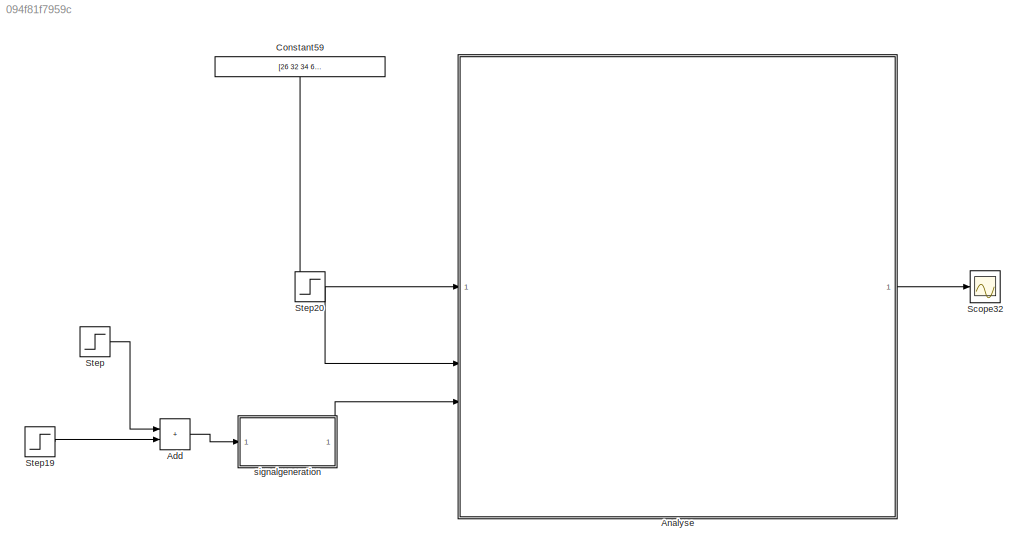
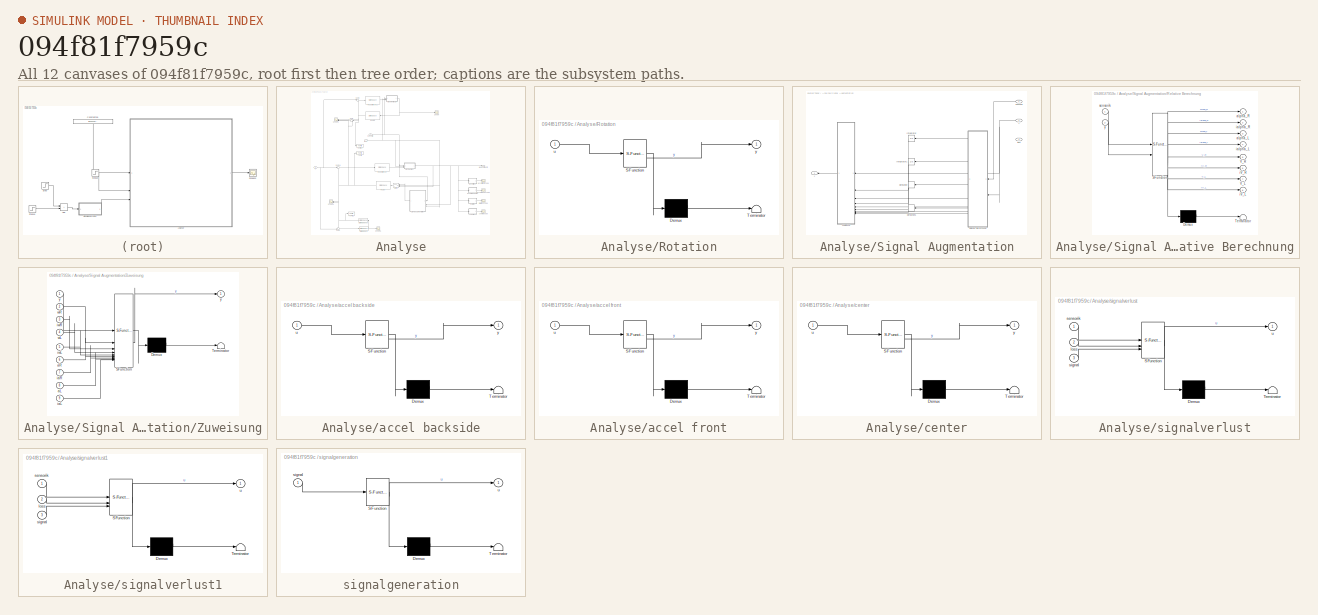
[diagram: thumbnail index - all 12 canvases of the model, root first then tree order]
MODEL slx_094f81f7959c
KIND model
CONFIG AbsTol = auto
CONFIG EnableMultiTasking = off
CONFIG FixedStep = auto
CONFIG MaxStep = auto
CONFIG MinStep = auto
CONFIG RelTol = 1e-3
CONFIG SampleTimeConstraint = Unconstrained
CONFIG SolverName = VariableStepAuto
CONFIG StartTime = 0.0
CONFIG StopTime = 15
BLOCK [Sum] Add
  IconShape = rectangular
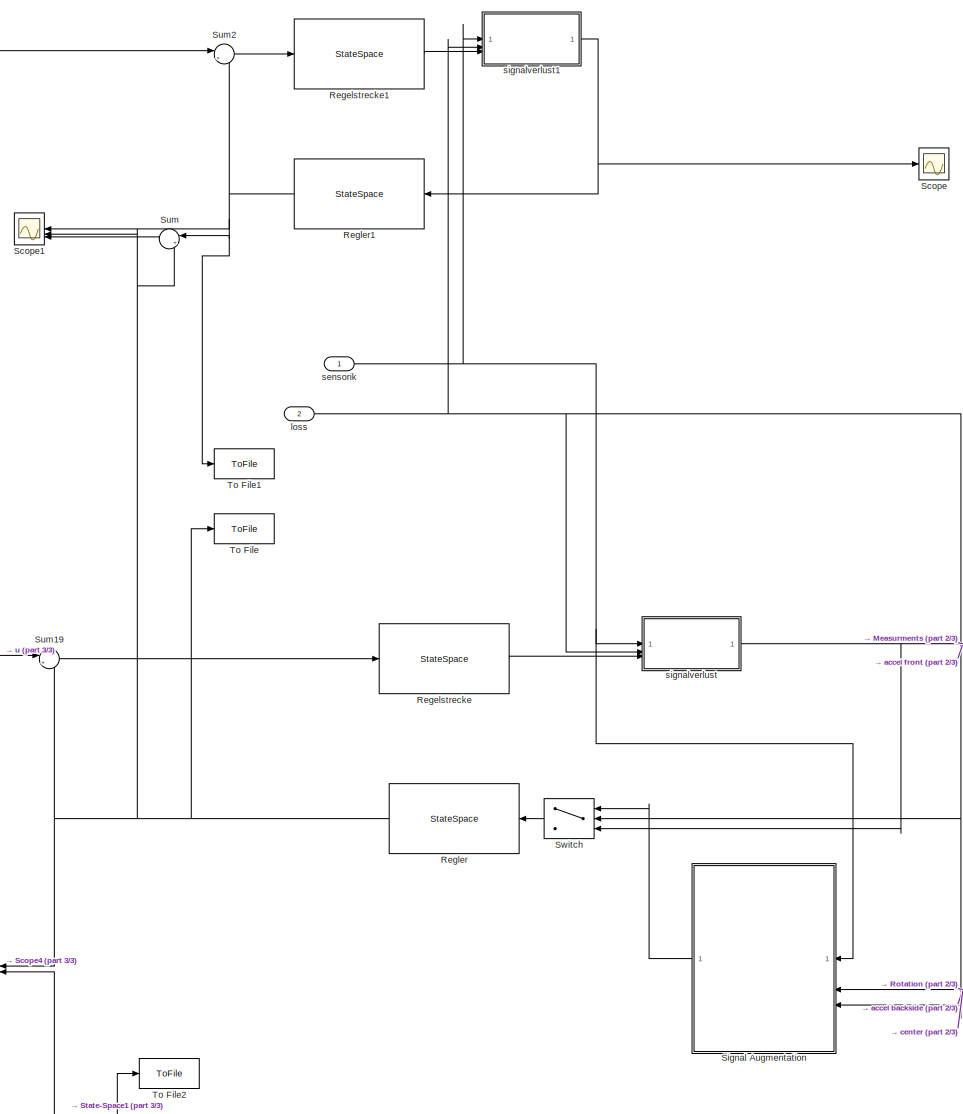
[diagram: Analyse - part 1/3, center side, full height]
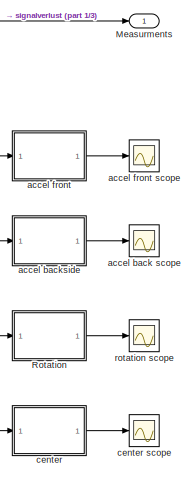
[diagram: Analyse - part 2/3, bottom right region]
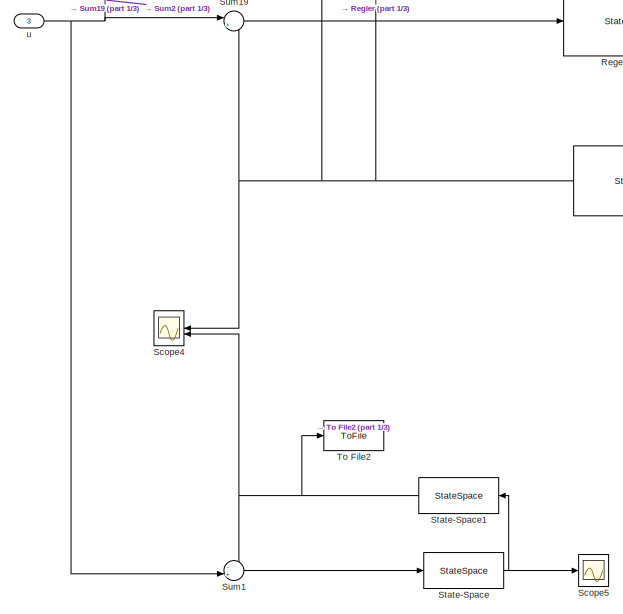
[diagram: Analyse - part 3/3, bottom left region]
BLOCK [SubSystem] Analyse
BLOCK [Outport] Analyse/Measurments
BLOCK [StateSpace] Analyse/Regelstrecke
  A = sysOL.A
  B = sysOL.B
  C = sysOL.C
  D = sysOL.D
  InitialCondition = 0
BLOCK [StateSpace] Analyse/Regelstrecke1
  A = sysOL.A
  B = sysOL.B
  C = sysOL.C
  D = sysOL.D
  InitialCondition = 0
BLOCK [StateSpace] Analyse/Regler
  A = K.A
  B = K.B
  C = K.C
  D = K.D
  InitialCondition = 0
BLOCK [StateSpace] Analyse/Regler1
  A = K.A
  B = K.B
  C = K.C
  D = K.D
  InitialCondition = 0
BLOCK [SubSystem] Analyse/Rotation
  ErrorFcn = Stateflow.Translate.translate
  PermitHierarchicalResolution = ExplicitOnly
  SFBlockType = MATLAB Function
  TreatAsAtomicUnit = on
BLOCK [Demux] Analyse/Rotation/ Demux 
  Outputs = 1
BLOCK [S-Function] Analyse/Rotation/ SFunction 
  EnableBusSupport = on
  FunctionName = sf_sfun
  PortCounts = [1 2]
  SFcnIsStateOwnerBlock = off
  SFunctionDeploymentMode = off
  Tag = Stateflow S-Function 70
BLOCK [Terminator] Analyse/Rotation/ Terminator 
BLOCK [Inport] Analyse/Rotation/u
BLOCK [Outport] Analyse/Rotation/y
BLOCK [Scope] Analyse/Scope
  Floating = off
  NumInputPorts = 1
  ScopeSpecificationString = Simulink.scopes.TimeScopeBlockCfg('CurrentConfiguration', extmgr.ConfigurationSet(extmgr.Configuration('Core','General UI',true),extmgr.Configuration('Core','Source UI',true),extmgr.Configuration('Sources','WiredSimulink',true,'DataLoggingVariableName','ScopeData1'),extmgr.Configuration('Visuals','Time Domain',true,'SerializedDisplays',{struct('MinYLimReal','-6709.10358','MaxYLimReal','6551.0922',...<+3357ch>
BLOCK [Scope] Analyse/Scope1
  Floating = off
  NumInputPorts = 3
  ScopeSpecificationString = Simulink.scopes.TimeScopeBlockCfg('CurrentConfiguration', extmgr.ConfigurationSet(extmgr.Configuration('Core','General UI',true),extmgr.Configuration('Core','Source UI',true),extmgr.Configuration('Sources','WiredSimulink',true,'DataLoggingVariableName','ScopeData2'),extmgr.Configuration('Visuals','Time Domain',true,'SerializedDisplays',{struct('MinYLimReal','-12.5925','MaxYLimReal','12.90154','YLa...<+3610ch>
BLOCK [Scope] Analyse/Scope4
  Floating = off
  NumInputPorts = 2
  ScopeSpecificationString = Simulink.scopes.TimeScopeBlockCfg('CurrentConfiguration', extmgr.ConfigurationSet(extmgr.Configuration('Core','General UI',true),extmgr.Configuration('Core','Source UI',true),extmgr.Configuration('Sources','WiredSimulink',true,'DataLoggingVariableName','ScopeData4'),extmgr.Configuration('Visuals','Time Domain',true,'SerializedDisplays',{struct('MinYLimReal','-0.0445','MaxYLimReal','0.05995','YLabe...<+2779ch>
BLOCK [Scope] Analyse/Scope5
  Floating = off
  NumInputPorts = 1
  ScopeSpecificationString = Simulink.scopes.TimeScopeBlockCfg('CurrentConfiguration', extmgr.ConfigurationSet(extmgr.Configuration('Core','General UI',true),extmgr.Configuration('Core','Source UI',true),extmgr.Configuration('Sources','WiredSimulink',true,'DataLoggingVariableName','ScopeData3'),extmgr.Configuration('Visuals','Time Domain',true,'SerializedDisplays',{struct('MinYLimReal','-484.48966','MaxYLimReal','504.40721','...<+3112ch>
BLOCK [SubSystem] Analyse/Signal Augmentation
BLOCK [Derivative] Analyse/Signal Augmentation/Derivative
  NameLocation = top
BLOCK [Derivative] Analyse/Signal Augmentation/Derivative1
  NameLocation = top
BLOCK [Integrator] Analyse/Signal Augmentation/Integrator
  NameLocation = top
BLOCK [Integrator] Analyse/Signal Augmentation/Integrator1
  NameLocation = top
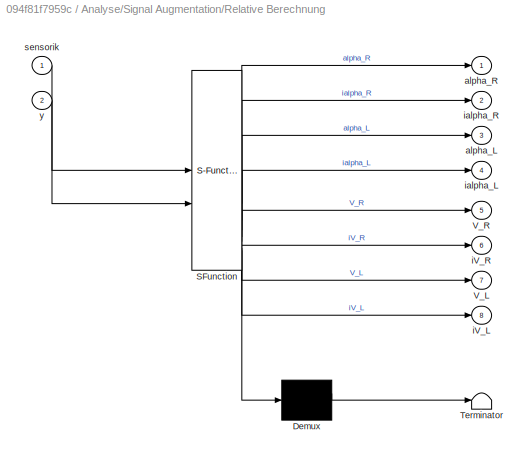
BLOCK [SubSystem] Analyse/Signal Augmentation/Relative Berechnung
  ErrorFcn = Stateflow.Translate.translate
  NameLocation = top
  PermitHierarchicalResolution = ExplicitOnly
  SFBlockType = MATLAB Function
  TreatAsAtomicUnit = on
BLOCK [Demux] Analyse/Signal Augmentation/Relative Berechnung/ Demux 
  Outputs = 1
BLOCK [S-Function] Analyse/Signal Augmentation/Relative Berechnung/ SFunction 
  EnableBusSupport = on
  FunctionName = sf_sfun
  PortCounts = [2 9]
  SFcnIsStateOwnerBlock = off
  SFunctionDeploymentMode = off
  Tag = Stateflow S-Function 71
BLOCK [Terminator] Analyse/Signal Augmentation/Relative Berechnung/ Terminator 
BLOCK [Outport] Analyse/Signal Augmentation/Relative Berechnung/V_L
  Port = 7
BLOCK [Outport] Analyse/Signal Augmentation/Relative Berechnung/V_R
  Port = 5
BLOCK [Outport] Analyse/Signal Augmentation/Relative Berechnung/alpha_L
  Port = 3
BLOCK [Outport] Analyse/Signal Augmentation/Relative Berechnung/alpha_R
BLOCK [Outport] Analyse/Signal Augmentation/Relative Berechnung/iV_L
  Port = 8
BLOCK [Outport] Analyse/Signal Augmentation/Relative Berechnung/iV_R
  Port = 6
BLOCK [Outport] Analyse/Signal Augmentation/Relative Berechnung/ialpha_L
  Port = 4
BLOCK [Outport] Analyse/Signal Augmentation/Relative Berechnung/ialpha_R
  Port = 2
BLOCK [Inport] Analyse/Signal Augmentation/Relative Berechnung/sensorik
BLOCK [Inport] Analyse/Signal Augmentation/Relative Berechnung/y
  Port = 2
BLOCK [SubSystem] Analyse/Signal Augmentation/Zuweisung
  ErrorFcn = Stateflow.Translate.translate
  NameLocation = top
  PermitHierarchicalResolution = ExplicitOnly
  SFBlockType = MATLAB Function
  TreatAsAtomicUnit = on
BLOCK [Demux] Analyse/Signal Augmentation/Zuweisung/ Demux 
  Outputs = 1
BLOCK [S-Function] Analyse/Signal Augmentation/Zuweisung/ SFunction 
  EnableBusSupport = on
  FunctionName = sf_sfun
  PortCounts = [9 2]
  SFcnIsStateOwnerBlock = off
  SFunctionDeploymentMode = off
  Tag = Stateflow S-Function 72
BLOCK [Terminator] Analyse/Signal Augmentation/Zuweisung/ Terminator 
BLOCK [Inport] Analyse/Signal Augmentation/Zuweisung/aL
  Port = 8
BLOCK [Inport] Analyse/Signal Augmentation/Zuweisung/aR
  Port = 6
BLOCK [Inport] Analyse/Signal Augmentation/Zuweisung/iaL
  Port = 9
BLOCK [Inport] Analyse/Signal Augmentation/Zuweisung/iaR
  Port = 7
BLOCK [Inport] Analyse/Signal Augmentation/Zuweisung/iwL
  Port = 5
BLOCK [Inport] Analyse/Signal Augmentation/Zuweisung/iwR
  Port = 3
BLOCK [Inport] Analyse/Signal Augmentation/Zuweisung/wL
  Port = 4
BLOCK [Inport] Analyse/Signal Augmentation/Zuweisung/wR
  Port = 2
BLOCK [Outport] Analyse/Signal Augmentation/Zuweisung/y
BLOCK [Inport] Analyse/Signal Augmentation/Zuweisung/y 
BLOCK [Inport] Analyse/Signal Augmentation/loss
  Port = 3
BLOCK [Inport] Analyse/Signal Augmentation/sensorik
BLOCK [Outport] Analyse/Signal Augmentation/y
BLOCK [Inport] Analyse/Signal Augmentation/y 
  Port = 2
BLOCK [StateSpace] Analyse/State-Space
  A = sysOL.A
  B = sysOL.B
  C = sysOL.C(relOutput,:)
  D = sysOL.D(relOutput,:)
  InitialCondition = 0
BLOCK [StateSpace] Analyse/State-Space1
  A = K.A
  B = K.B
  C = K.C
  D = K.D
  InitialCondition = 0
BLOCK [Sum] Analyse/Sum
  Inputs = |+-
BLOCK [Sum] Analyse/Sum1
  Inputs = -+|
BLOCK [Sum] Analyse/Sum19
  Inputs = |+-
BLOCK [Sum] Analyse/Sum2
  Inputs = |+-
BLOCK [Switch] Analyse/Switch
  Criteria = u2 > Threshold
  InputSameDT = off
  NameLocation = top
  SaturateOnIntegerOverflow = off
BLOCK [ToFile] Analyse/To File
  Filename = augmentiert_imb_58.mat
BLOCK [ToFile] Analyse/To File1
  Filename = original_imb_58.mat
BLOCK [ToFile] Analyse/To File2
  Filename = ideal_imb_58.mat
BLOCK [Scope] Analyse/accel back scope
  Floating = off
  NumInputPorts = 1
  ScopeSpecificationString = Simulink.scopes.TimeScopeBlockCfg('CurrentConfiguration', extmgr.ConfigurationSet(extmgr.Configuration('Core','General UI',true),extmgr.Configuration('Core','Source UI',true),extmgr.Configuration('Sources','WiredSimulink',true,'DataLoggingVariableName','ScopeData3'),extmgr.Configuration('Visuals','Time Domain',true,'SerializedDisplays',{struct('MinYLimReal','-5.453','MaxYLimReal','43.29898','YLabe...<+1559ch>
BLOCK [SubSystem] Analyse/accel backside
  ErrorFcn = Stateflow.Translate.translate
  PermitHierarchicalResolution = ExplicitOnly
  SFBlockType = MATLAB Function
  TreatAsAtomicUnit = on
BLOCK [Demux] Analyse/accel backside/ Demux 
  Outputs = 1
BLOCK [S-Function] Analyse/accel backside/ SFunction 
  EnableBusSupport = on
  FunctionName = sf_sfun
  PortCounts = [1 2]
  SFcnIsStateOwnerBlock = off
  SFunctionDeploymentMode = off
  Tag = Stateflow S-Function 69
BLOCK [Terminator] Analyse/accel backside/ Terminator 
BLOCK [Inport] Analyse/accel backside/u
BLOCK [Outport] Analyse/accel backside/y
BLOCK [SubSystem] Analyse/accel front
  ErrorFcn = Stateflow.Translate.translate
  PermitHierarchicalResolution = ExplicitOnly
  SFBlockType = MATLAB Function
  TreatAsAtomicUnit = on
BLOCK [Scope] Analyse/accel front scope
  Floating = off
  NumInputPorts = 1
  ScopeSpecificationString = Simulink.scopes.TimeScopeBlockCfg('CurrentConfiguration', extmgr.ConfigurationSet(extmgr.Configuration('Core','General UI',true),extmgr.Configuration('Core','Source UI',true),extmgr.Configuration('Sources','WiredSimulink',true,'DataLoggingVariableName','ScopeData2'),extmgr.Configuration('Visuals','Time Domain',true,'SerializedDisplays',{struct('MinYLimReal','-35.86363','MaxYLimReal','38.01395','YL...<+1575ch>
BLOCK [Demux] Analyse/accel front/ Demux 
  Outputs = 1
BLOCK [S-Function] Analyse/accel front/ SFunction 
  EnableBusSupport = on
  FunctionName = sf_sfun
  PortCounts = [1 2]
  SFcnIsStateOwnerBlock = off
  SFunctionDeploymentMode = off
  Tag = Stateflow S-Function 68
BLOCK [Terminator] Analyse/accel front/ Terminator 
BLOCK [Inport] Analyse/accel front/u
BLOCK [Outport] Analyse/accel front/y
BLOCK [SubSystem] Analyse/center
  ErrorFcn = Stateflow.Translate.translate
  PermitHierarchicalResolution = ExplicitOnly
  SFBlockType = MATLAB Function
  TreatAsAtomicUnit = on
BLOCK [Scope] Analyse/center scope
  Floating = off
  NumInputPorts = 1
  ScopeSpecificationString = Simulink.scopes.TimeScopeBlockCfg('CurrentConfiguration', extmgr.ConfigurationSet(extmgr.Configuration('Core','General UI',true),extmgr.Configuration('Core','Source UI',true),extmgr.Configuration('Sources','WiredSimulink',true,'DataLoggingVariableName','ScopeData2'),extmgr.Configuration('Visuals','Time Domain',true,'SerializedDisplays',{struct('MinYLimReal','-5.22179','MaxYLimReal','37.48993','YLa...<+1517ch>
BLOCK [Demux] Analyse/center/ Demux 
  Outputs = 1
BLOCK [S-Function] Analyse/center/ SFunction 
  EnableBusSupport = on
  FunctionName = sf_sfun
  PortCounts = [1 2]
  SFcnIsStateOwnerBlock = off
  SFunctionDeploymentMode = off
  Tag = Stateflow S-Function 1
BLOCK [Terminator] Analyse/center/ Terminator 
BLOCK [Inport] Analyse/center/u
BLOCK [Outport] Analyse/center/y
BLOCK [Inport] Analyse/loss
  Port = 2
BLOCK [Scope] Analyse/rotation scope
  Floating = off
  NumInputPorts = 1
  ScopeSpecificationString = Simulink.scopes.TimeScopeBlockCfg('CurrentConfiguration', extmgr.ConfigurationSet(extmgr.Configuration('Core','General UI',true),extmgr.Configuration('Core','Source UI',true),extmgr.Configuration('Sources','WiredSimulink',true,'DataLoggingVariableName','ScopeData4'),extmgr.Configuration('Visuals','Time Domain',true,'SerializedDisplays',{struct('MinYLimReal','-1.43978','MaxYLimReal','0.16299','YLab...<+1569ch>
BLOCK [Inport] Analyse/sensorik
BLOCK [SubSystem] Analyse/signalverlust
  ErrorFcn = Stateflow.Translate.translate
  PermitHierarchicalResolution = ExplicitOnly
  SFBlockType = MATLAB Function
  TreatAsAtomicUnit = on
BLOCK [Demux] Analyse/signalverlust/ Demux 
  Outputs = 1
BLOCK [S-Function] Analyse/signalverlust/ SFunction 
  EnableBusSupport = on
  FunctionName = sf_sfun
  PortCounts = [3 2]
  SFcnIsStateOwnerBlock = off
  SFunctionDeploymentMode = off
  Tag = Stateflow S-Function 63
BLOCK [Terminator] Analyse/signalverlust/ Terminator 
BLOCK [Inport] Analyse/signalverlust/loss
  Port = 2
BLOCK [Inport] Analyse/signalverlust/sensorik
BLOCK [Inport] Analyse/signalverlust/signal
  Port = 3
BLOCK [Outport] Analyse/signalverlust/u
BLOCK [SubSystem] Analyse/signalverlust1
  ErrorFcn = Stateflow.Translate.translate
  PermitHierarchicalResolution = ExplicitOnly
  SFBlockType = MATLAB Function
  TreatAsAtomicUnit = on
BLOCK [Demux] Analyse/signalverlust1/ Demux 
  Outputs = 1
BLOCK [S-Function] Analyse/signalverlust1/ SFunction 
  EnableBusSupport = on
  FunctionName = sf_sfun
  PortCounts = [3 2]
  SFcnIsStateOwnerBlock = off
  SFunctionDeploymentMode = off
  Tag = Stateflow S-Function 2
BLOCK [Terminator] Analyse/signalverlust1/ Terminator 
BLOCK [Inport] Analyse/signalverlust1/loss
  Port = 2
BLOCK [Inport] Analyse/signalverlust1/sensorik
BLOCK [Inport] Analyse/signalverlust1/signal
  Port = 3
BLOCK [Outport] Analyse/signalverlust1/u
BLOCK [Inport] Analyse/u
  Port = 3
BLOCK [Constant] Constant59
  NameLocation = left
  Value = [26 32 34 62 68 70 38 44 46 74 80 82 56 92]
  VectorParams1D = off
BLOCK [Scope] Scope32
  Floating = off
  NumInputPorts = 1
  ScopeSpecificationString = Simulink.scopes.TimeScopeBlockCfg('CurrentConfiguration', extmgr.ConfigurationSet(extmgr.Configuration('Core','General UI',true),extmgr.Configuration('Core','Source UI',true),extmgr.Configuration('Sources','WiredSimulink',true,'DataLoggingVariableName','ScopeData1'),extmgr.Configuration('Visuals','Time Domain',true,'SerializedDisplays',{struct('MinYLimReal','-11.81323','MaxYLimReal','51.93708','YL...<+2752ch>
BLOCK [Step] Step
  After = 0
  SampleTime = 0
  Time = 0.5
BLOCK [Step] Step19
  After = 0.1
  Before = 0.1
  SampleTime = 0
BLOCK [Step] Step20
  Before = 1
  SampleTime = 0
  Time = 0.5
BLOCK [SubSystem] signalgeneration
  ErrorFcn = Stateflow.Translate.translate
  PermitHierarchicalResolution = ExplicitOnly
  SFBlockType = MATLAB Function
  TreatAsAtomicUnit = on
BLOCK [Demux] signalgeneration/ Demux 
  Outputs = 1
BLOCK [S-Function] signalgeneration/ SFunction 
  EnableBusSupport = on
  FunctionName = sf_sfun
  PortCounts = [1 2]
  SFcnIsStateOwnerBlock = off
  SFunctionDeploymentMode = off
  Tag = Stateflow S-Function 59
BLOCK [Terminator] signalgeneration/ Terminator 
BLOCK [Inport] signalgeneration/signal
BLOCK [Outport] signalgeneration/u
LINE Add:1 -> signalgeneration:1
LINE Analyse/Regelstrecke1:1 -> Analyse/signalverlust1:3
LINE Analyse/Regelstrecke:1 -> Analyse/signalverlust:3
NET Analyse/Regler1:1 -> Analyse/Scope1:1, Analyse/Sum2:2, Analyse/Sum:1, Analyse/To File1:1
NET Analyse/Regler:1 -> Analyse/Scope1:2, Analyse/Scope4:1, Analyse/Sum19:2, Analyse/Sum:2, Analyse/To File:1
LINE Analyse/Rotation:1 -> Analyse/rotation scope:1
LINE Analyse/Signal Augmentation/Derivative1:1 -> Analyse/Signal Augmentation/Zuweisung:8
LINE Analyse/Signal Augmentation/Derivative:1 -> Analyse/Signal Augmentation/Zuweisung:6
LINE Analyse/Signal Augmentation/Integrator1:1 -> Analyse/Signal Augmentation/Zuweisung:4
LINE Analyse/Signal Augmentation/Integrator:1 -> Analyse/Signal Augmentation/Zuweisung:2
LINE Analyse/Signal Augmentation/Relative Berechnung:1 -> Analyse/Signal Augmentation/Integrator:1
LINE Analyse/Signal Augmentation/Relative Berechnung:2 -> Analyse/Signal Augmentation/Zuweisung:3
LINE Analyse/Signal Augmentation/Relative Berechnung:3 -> Analyse/Signal Augmentation/Integrator1:1
LINE Analyse/Signal Augmentation/Relative Berechnung:4 -> Analyse/Signal Augmentation/Zuweisung:5
LINE Analyse/Signal Augmentation/Relative Berechnung:5 -> Analyse/Signal Augmentation/Derivative:1
LINE Analyse/Signal Augmentation/Relative Berechnung:6 -> Analyse/Signal Augmentation/Zuweisung:7
LINE Analyse/Signal Augmentation/Relative Berechnung:7 -> Analyse/Signal Augmentation/Derivative1:1
LINE Analyse/Signal Augmentation/Relative Berechnung:8 -> Analyse/Signal Augmentation/Zuweisung:9
LINE Analyse/Signal Augmentation/Zuweisung:1 -> Analyse/Signal Augmentation/y:1
LINE Analyse/Signal Augmentation/sensorik:1 -> Analyse/Signal Augmentation/Relative Berechnung:1
NET Analyse/Signal Augmentation/y :1 -> Analyse/Signal Augmentation/Relative Berechnung:2, Analyse/Signal Augmentation/Zuweisung:1
LINE Analyse/Signal Augmentation:1 -> Analyse/Switch:1
NET Analyse/State-Space1:1 -> Analyse/Scope4:2, Analyse/Sum1:1, Analyse/To File2:1
NET Analyse/State-Space:1 -> Analyse/Scope5:1, Analyse/State-Space1:1
LINE Analyse/Sum19:1 -> Analyse/Regelstrecke:1
LINE Analyse/Sum1:1 -> Analyse/State-Space:1
LINE Analyse/Sum2:1 -> Analyse/Regelstrecke1:1
LINE Analyse/Sum:1 -> Analyse/Scope1:3
LINE Analyse/Switch:1 -> Analyse/Regler:1
LINE Analyse/accel backside:1 -> Analyse/accel back scope:1
LINE Analyse/accel front:1 -> Analyse/accel front scope:1
LINE Analyse/center:1 -> Analyse/center scope:1
NET Analyse/loss:1 -> Analyse/Signal Augmentation:3, Analyse/Switch:2, Analyse/signalverlust1:2, Analyse/signalverlust:2
NET Analyse/sensorik:1 -> Analyse/Signal Augmentation:1, Analyse/signalverlust1:1, Analyse/signalverlust:1
NET Analyse/signalverlust1:1 -> Analyse/Regler1:1, Analyse/Scope:1
NET Analyse/signalverlust:1 -> Analyse/Measurments:1, Analyse/Rotation:1, Analyse/Signal Augmentation:2, Analyse/Switch:3, Analyse/accel backside:1, Analyse/accel front:1, Analyse/center:1
NET Analyse/u:1 -> Analyse/Sum19:1, Analyse/Sum1:2, Analyse/Sum2:1
LINE Analyse:1 -> Scope32:1
LINE Constant59:1 -> Analyse:1
LINE Step19:1 -> Add:2
LINE Step20:1 -> Analyse:2
LINE Step:1 -> Add:1
LINE signalgeneration:1 -> Analyse:3
note: NET lines group one-source signal fan-out (src -> all destinations, sorted); 1:1 wires keep LINE
CHART Analyse/center states=1 transitions=1
  STATE_LABEL 'eML_blk_kernel()'
  STATE_LABEL 'SCRIPT:\nfunction y = fcn(u)\nrot = [7 12];\ny = u(rot);\n'
CHART Analyse/signalverlust1 states=1 transitions=1
  STATE_LABEL 'eML_blk_kernel()'
  STATE_LABEL 'SCRIPT:\nfunction u = signalverlust(sensorik,loss,signal)\n\nif(loss~=0)\n    signal(sensorik)=0;\nend\nu=signal;\n'
CHART signalgeneration states=1 transitions=1
  STATE_LABEL 'eML_blk_kernel()'
  STATE_LABEL 'SCRIPT:\nfunction u = signalgeneration(signal)\n% t =0:10;\ncommand = zeros(19,1);\n% ilaileron = 13;\n% iraileron = 14;\n% command([15:19])=sin(t);\n% % command([iraileron])=-1;\n\ncommand([15 16]) = signal;\ncommand([17 18]) = signal;\nu=command;\n'
CHART Analyse/signalverlust states=1 transitions=1
  STATE_LABEL 'eML_blk_kernel()'
  STATE_LABEL 'SCRIPT:\nfunction u = signalverlust(sensorik,loss,signal)\n\nif(loss~=0)\n    signal(sensorik)=0;\nend\nu=signal;\n'
CHART Analyse/accel front states=1 transitions=1
  STATE_LABEL 'eML_blk_kernel()'
  STATE_LABEL 'SCRIPT:\nfunction y = fcn(u)\nfw = [26 38 50 62 74 86];\ny = u(fw);\n'
CHART Analyse/accel backside states=1 transitions=1
  STATE_LABEL 'eML_blk_kernel()'
  STATE_LABEL 'SCRIPT:\nfunction y = fcn(u)\nbw = [32 44 56 68 80 92];\ny = u(bw);\n'
CHART Analyse/Rotation states=1 transitions=1
  STATE_LABEL 'eML_blk_kernel()'
  STATE_LABEL 'SCRIPT:\nfunction y = fcn(u)\nrot = [34 46 58 70 82 94];\ny = u(rot);\n'
CHART Analyse/Signal Augmentation/Relative Berechnung states=1 transitions=1
  STATE_LABEL 'eML_blk_kernel()'
  STATE_LABEL 'SCRIPT:\nfunction [alpha_R,ialpha_R,alpha_L,ialpha_L,V_R,iV_R,V_L,iV_L] = fcn(sensorik,y)\n\n%Indexe der Sensoren der Flügelquerschnitte links und rechts fw=forward;\n%bw = backward; rot = rotation\n    Rfw =  [62 74 86];\n    Rbw =  [68 80 92];\n    Rrot = [70 82 94];\n    R = [Rfw;Rbw;Rrot];\n    R_lookup=R;\n    Lfw =  [26 38 50];\n    Lbw =  [32 44 56];\n    Lrot = [34 46 58];\n    L = [Lfw;Lbw;Lrot];\n    ...<+2272ch>'
CHART Analyse/Signal Augmentation/Zuweisung states=1 transitions=1
  STATE_LABEL 'eML_blk_kernel()'
  STATE_LABEL 'SCRIPT:\nfunction y = zuweisung(y,wR,iwR,wL,iwL,aR,iaR,aL,iaL)\n%Indizes der Sensoren sammeln\n    Rfw =  [62 74 86];\n    Rbw =  [68 80 92];\n    Rrot = [70 82 94];\n    R=[Rfw;Rbw;Rrot];\n    \n    Lfw =  [26 38 50];\n    Lbw =  [32 44 56];\n    Lrot = [34 46 58];\n    L=[Lfw;Lbw;Lrot];\n    \n% Wenn ein Eintrag im Vektor vorhanden ist, bedeutet dies dass dieser Sensor\n% ersetzt werden muss\n% Danach wird übe...<+1199ch>'
CHART  states=0 transitions=0
CHART  states=0 transitions=0
CHART  states=0 transitions=0
CHART  states=0 transitions=0
CHART  states=0 transitions=0
CHART  states=0 transitions=0
CHART  states=0 transitions=0
CHART  states=0 transitions=0
CHART  states=0 transitions=0
